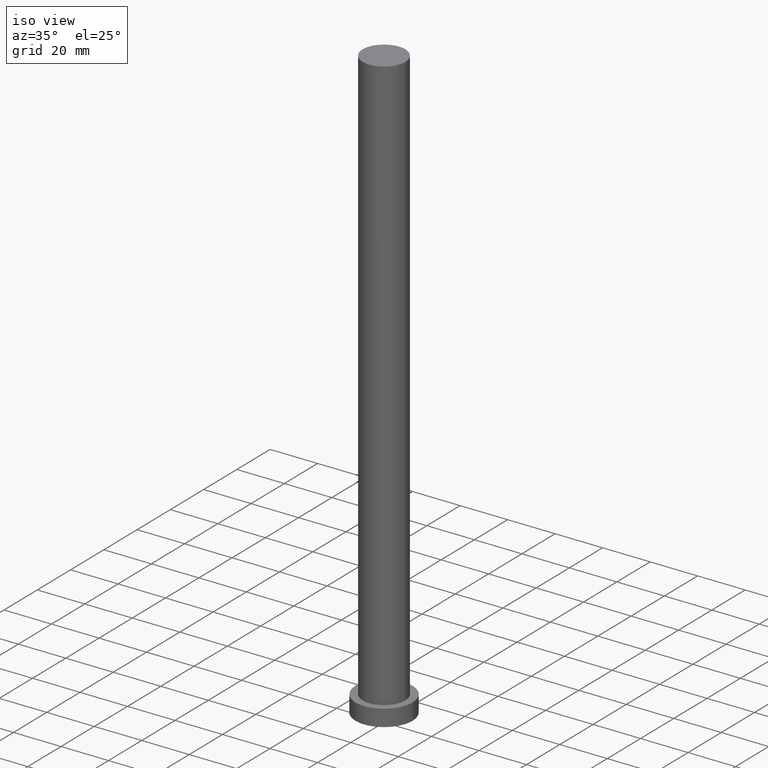
[diagram: clean part render]
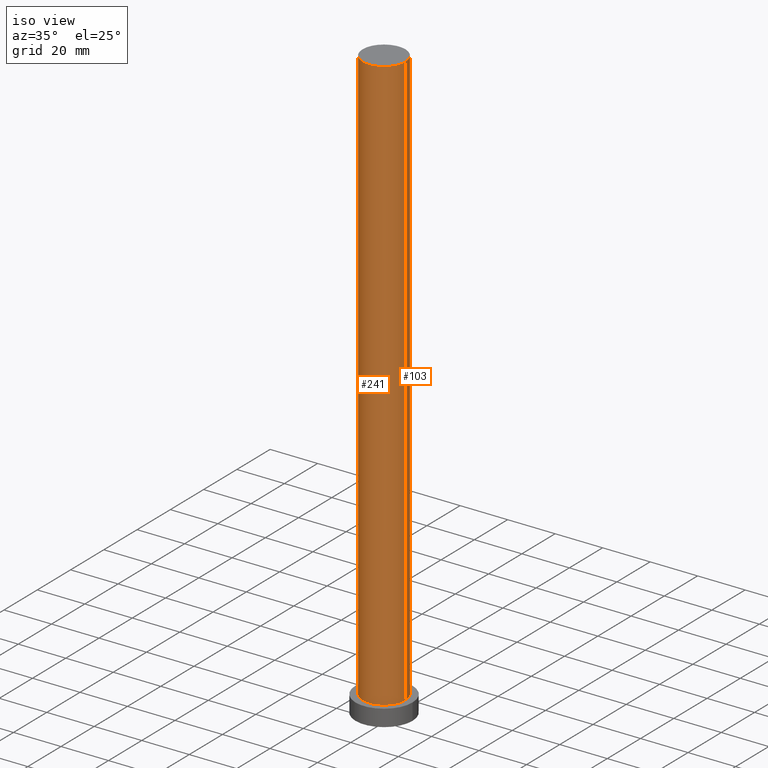
[diagram: same view with one multi-face feature highlighted, each face labeled with its STEP entity id]
A machine part, iso view. The highlighted faces form ONE feature: a constant-radius fillet chain: 2 tangent blend faces with common blend radius 9 mm. The faces share edges in the B-rep.
Their STEP definitions:
[1] entity #103 (Cylinder):
#1 = DIRECTION ( 'NONE',  ( -0.000000000000000000, -0.000000000000000000, -1.000000000000000000 ) ) ;
#2 = CIRCLE ( 'NONE', #32, 9.000000000000001776 ) ;
#32 = AXIS2_PLACEMENT_3D ( 'NONE', #70, #233, #117 ) ;
#35 = DIRECTION ( 'NONE',  ( 1.000000000000000000, 0.000000000000000000, 0.000000000000000000 ) ) ;
#41 = CARTESIAN_POINT ( 'NONE',  ( -9.000000000000001776, 0.000000000000000000, 7.000000000000000000 ) ) ;
#48 = EDGE_CURVE ( 'NONE', #154, #210, #2, .T. ) ;
#51 = EDGE_CURVE ( 'NONE', #231, #215, #168, .T. ) ;
#54 = EDGE_LOOP ( 'NONE', ( #163, #136, #252, #74 ) ) ;
#57 = CARTESIAN_POINT ( 'NONE',  ( -9.000000000000001776, 0.000000000000000000, 250.0000000000000000 ) ) ;
#59 = CYLINDRICAL_SURFACE ( 'NONE', #181, 9.000000000000001776 ) ;
#70 = CARTESIAN_POINT ( 'NONE',  ( 0.000000000000000000, 0.000000000000000000, 7.000000000000000000 ) ) ;
#74 = ORIENTED_EDGE ( 'NONE', *, *, #224, .F. ) ;
#79 = DIRECTION ( 'NONE',  ( -0.000000000000000000, -0.000000000000000000, -1.000000000000000000 ) ) ;
#101 = CARTESIAN_POINT ( 'NONE',  ( 0.000000000000000000, 0.000000000000000000, 250.0000000000000000 ) ) ;
#103 = ADVANCED_FACE ( 'NONE', ( #219 ), #59, .T. ) ;
#117 = DIRECTION ( 'NONE',  ( 1.000000000000000000, 0.000000000000000000, 0.000000000000000000 ) ) ;
#125 = LINE ( 'NONE', #238, #175 ) ;
#136 = ORIENTED_EDGE ( 'NONE', *, *, #149, .T. ) ;
#139 = LINE ( 'NONE', #57, #192 ) ;
#149 = EDGE_CURVE ( 'NONE', #231, #154, #125, .T. ) ;
#154 = VERTEX_POINT ( 'NONE', #196 ) ;
#160 = DIRECTION ( 'NONE',  ( -1.000000000000000000, 0.000000000000000000, 0.000000000000000000 ) ) ;
#161 = CARTESIAN_POINT ( 'NONE',  ( -9.000000000000001776, 0.000000000000000000, 250.0000000000000000 ) ) ;
#163 = ORIENTED_EDGE ( 'NONE', *, *, #51, .F. ) ;
#168 = CIRCLE ( 'NONE', #234, 9.000000000000001776 ) ;
#175 = VECTOR ( 'NONE', #182, 1000.000000000000000 ) ;
#181 = AXIS2_PLACEMENT_3D ( 'NONE', #101, #79, #160 ) ;
#182 = DIRECTION ( 'NONE',  ( -0.000000000000000000, -0.000000000000000000, -1.000000000000000000 ) ) ;
#191 = DIRECTION ( 'NONE',  ( 0.000000000000000000, 0.000000000000000000, 1.000000000000000000 ) ) ;
#192 = VECTOR ( 'NONE', #1, 1000.000000000000000 ) ;
#196 = CARTESIAN_POINT ( 'NONE',  ( 9.000000000000001776, 1.102182119232617911E-15, 7.000000000000000000 ) ) ;
#210 = VERTEX_POINT ( 'NONE', #41 ) ;
#213 = CARTESIAN_POINT ( 'NONE',  ( 0.000000000000000000, 0.000000000000000000, 250.0000000000000000 ) ) ;
#215 = VERTEX_POINT ( 'NONE', #161 ) ;
#219 = FACE_OUTER_BOUND ( 'NONE', #54, .T. ) ;
#221 = CARTESIAN_POINT ( 'NONE',  ( 9.000000000000001776, 1.102182119232617911E-15, 250.0000000000000000 ) ) ;
#224 = EDGE_CURVE ( 'NONE', #215, #210, #139, .T. ) ;
#231 = VERTEX_POINT ( 'NONE', #221 ) ;
#233 = DIRECTION ( 'NONE',  ( 0.000000000000000000, 0.000000000000000000, 1.000000000000000000 ) ) ;
#234 = AXIS2_PLACEMENT_3D ( 'NONE', #213, #191, #35 ) ;
#238 = CARTESIAN_POINT ( 'NONE',  ( 9.000000000000001776, 1.102182119232617911E-15, 250.0000000000000000 ) ) ;
#252 = ORIENTED_EDGE ( 'NONE', *, *, #48, .T. ) ;
[2] entity #241 (Cylinder):
#1 = DIRECTION ( 'NONE',  ( -0.000000000000000000, -0.000000000000000000, -1.000000000000000000 ) ) ;
#7 = CIRCLE ( 'NONE', #28, 9.000000000000001776 ) ;
#15 = EDGE_LOOP ( 'NONE', ( #17, #189, #97, #235 ) ) ;
#17 = ORIENTED_EDGE ( 'NONE', *, *, #149, .F. ) ;
#25 = CIRCLE ( 'NONE', #52, 9.000000000000001776 ) ;
#28 = AXIS2_PLACEMENT_3D ( 'NONE', #242, #62, #142 ) ;
#41 = CARTESIAN_POINT ( 'NONE',  ( -9.000000000000001776, 0.000000000000000000, 7.000000000000000000 ) ) ;
#42 = DIRECTION ( 'NONE',  ( -1.000000000000000000, 0.000000000000000000, 0.000000000000000000 ) ) ;
#52 = AXIS2_PLACEMENT_3D ( 'NONE', #178, #245, #201 ) ;
#57 = CARTESIAN_POINT ( 'NONE',  ( -9.000000000000001776, 0.000000000000000000, 250.0000000000000000 ) ) ;
#62 = DIRECTION ( 'NONE',  ( 0.000000000000000000, 0.000000000000000000, 1.000000000000000000 ) ) ;
#92 = AXIS2_PLACEMENT_3D ( 'NONE', #121, #159, #42 ) ;
#97 = ORIENTED_EDGE ( 'NONE', *, *, #224, .T. ) ;
#102 = CYLINDRICAL_SURFACE ( 'NONE', #92, 9.000000000000001776 ) ;
#121 = CARTESIAN_POINT ( 'NONE',  ( 0.000000000000000000, 0.000000000000000000, 250.0000000000000000 ) ) ;
#125 = LINE ( 'NONE', #238, #175 ) ;
#139 = LINE ( 'NONE', #57, #192 ) ;
#142 = DIRECTION ( 'NONE',  ( 1.000000000000000000, 0.000000000000000000, 0.000000000000000000 ) ) ;
#149 = EDGE_CURVE ( 'NONE', #231, #154, #125, .T. ) ;
#154 = VERTEX_POINT ( 'NONE', #196 ) ;
#155 = EDGE_CURVE ( 'NONE', #215, #231, #25, .T. ) ;
#159 = DIRECTION ( 'NONE',  ( -0.000000000000000000, -0.000000000000000000, -1.000000000000000000 ) ) ;
#161 = CARTESIAN_POINT ( 'NONE',  ( -9.000000000000001776, 0.000000000000000000, 250.0000000000000000 ) ) ;
#175 = VECTOR ( 'NONE', #182, 1000.000000000000000 ) ;
#176 = FACE_OUTER_BOUND ( 'NONE', #15, .T. ) ;
#178 = CARTESIAN_POINT ( 'NONE',  ( 0.000000000000000000, 0.000000000000000000, 250.0000000000000000 ) ) ;
#182 = DIRECTION ( 'NONE',  ( -0.000000000000000000, -0.000000000000000000, -1.000000000000000000 ) ) ;
#189 = ORIENTED_EDGE ( 'NONE', *, *, #155, .F. ) ;
#192 = VECTOR ( 'NONE', #1, 1000.000000000000000 ) ;
#193 = EDGE_CURVE ( 'NONE', #210, #154, #7, .T. ) ;
#196 = CARTESIAN_POINT ( 'NONE',  ( 9.000000000000001776, 1.102182119232617911E-15, 7.000000000000000000 ) ) ;
#201 = DIRECTION ( 'NONE',  ( 1.000000000000000000, 0.000000000000000000, 0.000000000000000000 ) ) ;
#210 = VERTEX_POINT ( 'NONE', #41 ) ;
#215 = VERTEX_POINT ( 'NONE', #161 ) ;
#221 = CARTESIAN_POINT ( 'NONE',  ( 9.000000000000001776, 1.102182119232617911E-15, 250.0000000000000000 ) ) ;
#224 = EDGE_CURVE ( 'NONE', #215, #210, #139, .T. ) ;
#231 = VERTEX_POINT ( 'NONE', #221 ) ;
#235 = ORIENTED_EDGE ( 'NONE', *, *, #193, .T. ) ;
#238 = CARTESIAN_POINT ( 'NONE',  ( 9.000000000000001776, 1.102182119232617911E-15, 250.0000000000000000 ) ) ;
#241 = ADVANCED_FACE ( 'NONE', ( #176 ), #102, .T. ) ;
#242 = CARTESIAN_POINT ( 'NONE',  ( 0.000000000000000000, 0.000000000000000000, 7.000000000000000000 ) ) ;
#245 = DIRECTION ( 'NONE',  ( 0.000000000000000000, 0.000000000000000000, 1.000000000000000000 ) ) ;